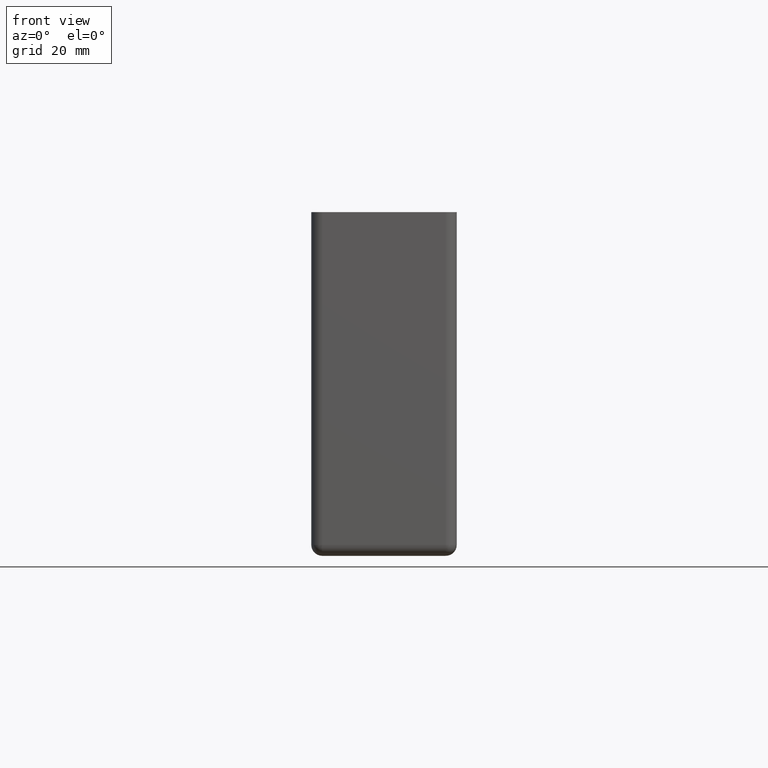
[diagram: clean part render]
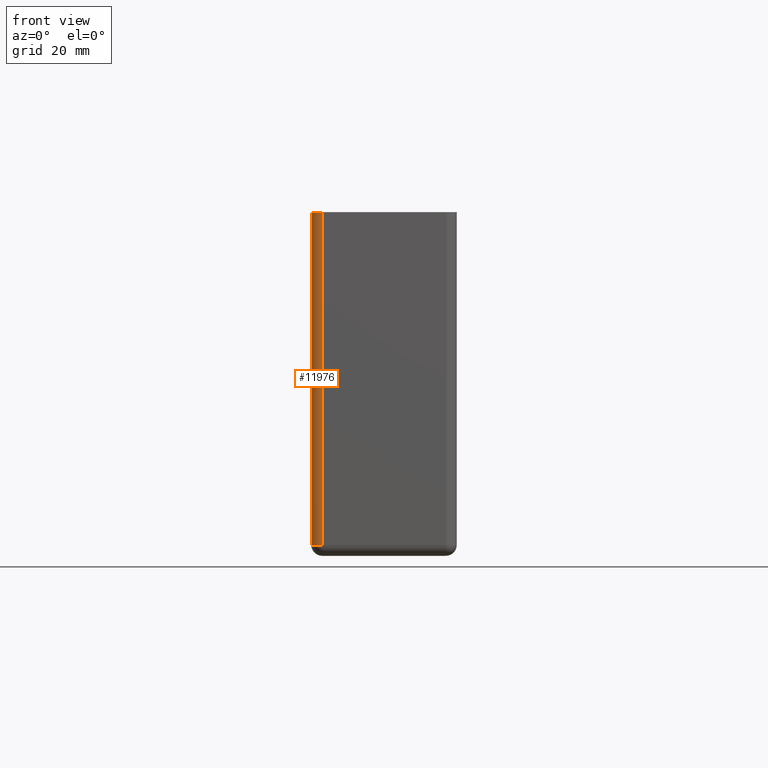
[diagram: same view with one face highlighted and labeled with its STEP entity id]
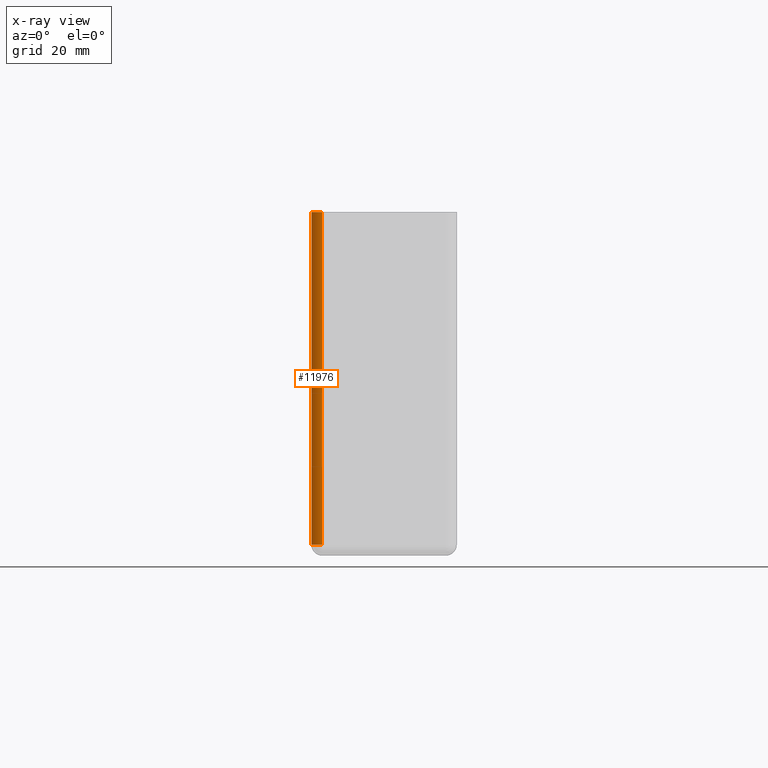
[diagram: x-ray of the same camera — body ghosted, the highlighted face saturated]
A machine part, front view. The second image highlights one B-rep face of the part: STEP entity #11976.
The next image is the same camera in x-ray: the body ghosted, the highlighted face saturated — about 0% of this face is hidden behind the body in this view.
In plain terms, the highlighted cylindrical surface (edge-blend (fillet) strip) has radius 3 mm, axis along (-0, 0, -1).
Its self-contained STEP definition (entity closure, byte-faithful):
#59 = EDGE_CURVE ( 'NONE', #5246, #11193, #10999, .T. ) ;
#612 = CARTESIAN_POINT ( 'NONE',  ( -16.99999999999998224, -83.49999999999997158, -44.25000000000000000 ) ) ;
#633 = CIRCLE ( 'NONE', #8499, 2.999999999999999112 ) ;
#747 = CARTESIAN_POINT ( 'NONE',  ( -19.99999999999998224, -83.49999999999997158, -44.25000000000000000 ) ) ;
#1136 = CARTESIAN_POINT ( 'NONE',  ( -16.99999999999998224, -86.49999999999998579, 47.25000000000000000 ) ) ;
#1699 = VERTEX_POINT ( 'NONE', #10365 ) ;
#2151 = CYLINDRICAL_SURFACE ( 'NONE', #2219, 2.999999999999999112 ) ;
#2217 = VERTEX_POINT ( 'NONE', #747 ) ;
#2219 = AXIS2_PLACEMENT_3D ( 'NONE', #12778, #3550, #5557 ) ;
#2228 = EDGE_LOOP ( 'NONE', ( #10575, #2399, #12827, #9725 ) ) ;
#2399 = ORIENTED_EDGE ( 'NONE', *, *, #8266, .F. ) ;
#2534 = CARTESIAN_POINT ( 'NONE',  ( -16.99999999999998224, -83.49999999999997158, 47.25000000000000000 ) ) ;
#2557 = LINE ( 'NONE', #11601, #7208 ) ;
#2792 = CARTESIAN_POINT ( 'NONE',  ( -16.99999999999998224, -86.49999999999998579, 47.25000000000000000 ) ) ;
#3341 = DIRECTION ( 'NONE',  ( 0.000000000000000000, -0.000000000000000000, 1.000000000000000000 ) ) ;
#3550 = DIRECTION ( 'NONE',  ( -0.000000000000000000, 0.000000000000000000, -1.000000000000000000 ) ) ;
#5199 = EDGE_CURVE ( 'NONE', #1699, #5246, #10785, .T. ) ;
#5246 = VERTEX_POINT ( 'NONE', #2792 ) ;
#5284 = DIRECTION ( 'NONE',  ( -0.000000000000000000, 0.000000000000000000, -1.000000000000000000 ) ) ;
#5445 = VECTOR ( 'NONE', #5284, 1000.000000000000000 ) ;
#5543 = FACE_OUTER_BOUND ( 'NONE', #2228, .T. ) ;
#5557 = DIRECTION ( 'NONE',  ( -1.000000000000000000, 0.000000000000000000, 0.000000000000000000 ) ) ;
#5709 = DIRECTION ( 'NONE',  ( -1.000000000000000000, 0.000000000000000000, 0.000000000000000000 ) ) ;
#5797 = DIRECTION ( 'NONE',  ( 1.000000000000000000, 0.000000000000000000, 0.000000000000000000 ) ) ;
#6990 = AXIS2_PLACEMENT_3D ( 'NONE', #2534, #7772, #5797 ) ;
#7208 = VECTOR ( 'NONE', #3341, 1000.000000000000000 ) ;
#7772 = DIRECTION ( 'NONE',  ( -0.000000000000000000, 0.000000000000000000, 1.000000000000000000 ) ) ;
#7880 = EDGE_CURVE ( 'NONE', #11193, #2217, #633, .T. ) ;
#8266 = EDGE_CURVE ( 'NONE', #2217, #1699, #2557, .T. ) ;
#8499 = AXIS2_PLACEMENT_3D ( 'NONE', #612, #8802, #5709 ) ;
#8713 = CARTESIAN_POINT ( 'NONE',  ( -16.99999999999998224, -86.49999999999998579, -44.25000000000000000 ) ) ;
#8802 = DIRECTION ( 'NONE',  ( -0.000000000000000000, -0.000000000000000000, -1.000000000000000000 ) ) ;
#9725 = ORIENTED_EDGE ( 'NONE', *, *, #59, .F. ) ;
#10365 = CARTESIAN_POINT ( 'NONE',  ( -19.99999999999998224, -83.49999999999997158, 47.25000000000000000 ) ) ;
#10575 = ORIENTED_EDGE ( 'NONE', *, *, #5199, .F. ) ;
#10785 = CIRCLE ( 'NONE', #6990, 2.999999999999999112 ) ;
#10999 = LINE ( 'NONE', #1136, #5445 ) ;
#11193 = VERTEX_POINT ( 'NONE', #8713 ) ;
#11601 = CARTESIAN_POINT ( 'NONE',  ( -19.99999999999998224, -83.49999999999997158, 47.25000000000000000 ) ) ;
#11976 = ADVANCED_FACE ( 'NONE', ( #5543 ), #2151, .T. ) ;
#12778 = CARTESIAN_POINT ( 'NONE',  ( -16.99999999999998224, -83.49999999999997158, 47.25000000000000000 ) ) ;
#12827 = ORIENTED_EDGE ( 'NONE', *, *, #7880, .F. ) ;